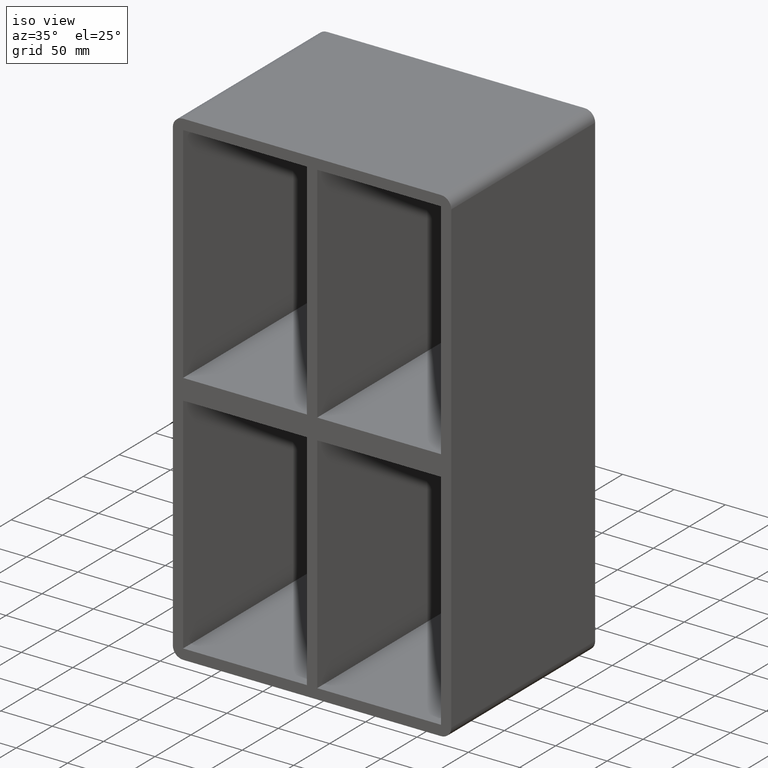
[diagram: clean part render]
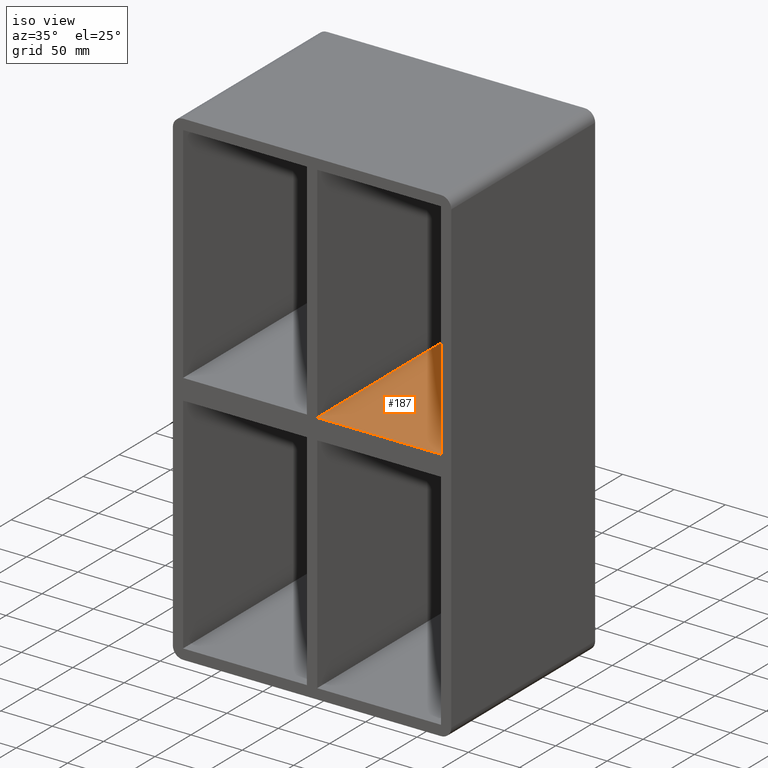
[diagram: same view with one face highlighted and labeled with its STEP entity id]
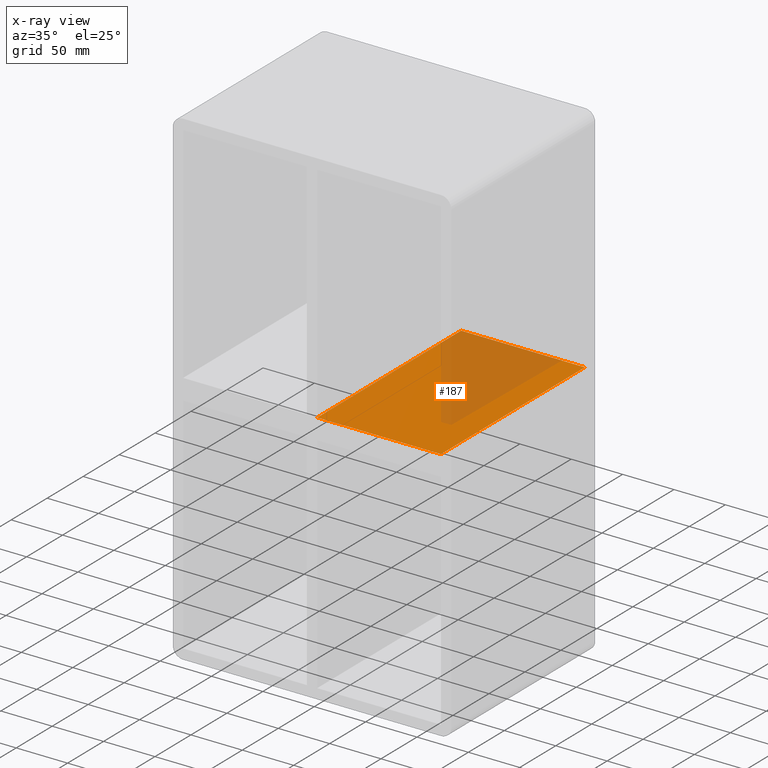
[diagram: x-ray of the same camera — body ghosted, the highlighted face saturated]
A machine part, iso view. The second image highlights one B-rep face of the part: STEP entity #187.
The next image is the same camera in x-ray: the body ghosted, the highlighted face saturated — about 39% of this face is hidden behind the body in this view.
In plain terms, the highlighted planar face has unit normal (0, 0, 1).
Its self-contained STEP definition (entity closure, byte-faithful):
#148=CARTESIAN_POINT('',(-125.49999999999967,-3.0,10.0));
#149=DIRECTION('',(0.0,0.0,1.0));
#150=DIRECTION('',(1.0,0.0,0.0));
#151=AXIS2_PLACEMENT_3D('',#148,#149,#150);
#152=PLANE('',#151);
#153=CARTESIAN_POINT('',(5.0,-3.0,10.0));
#154=VERTEX_POINT('',#153);
#155=CARTESIAN_POINT('',(5.0,197.0,10.0));
#156=VERTEX_POINT('',#155);
#157=CARTESIAN_POINT('',(5.0,-3.0,10.0));
#158=DIRECTION('',(0.0,1.0,0.0));
#159=VECTOR('',#158,200.0);
#160=LINE('',#157,#159);
#161=EDGE_CURVE('',#154,#156,#160,.T.);
#162=ORIENTED_EDGE('',*,*,#161,.F.);
#163=CARTESIAN_POINT('',(125.4999999999999,-3.0,10.0));
#164=VERTEX_POINT('',#163);
#165=CARTESIAN_POINT('',(4.999999999999986,-3.0,10.0));
#166=DIRECTION('',(1.0,0.0,0.0));
#167=VECTOR('',#166,120.49999999999994);
#168=LINE('',#165,#167);
#169=EDGE_CURVE('',#154,#164,#168,.T.);
#170=ORIENTED_EDGE('',*,*,#169,.T.);
#171=CARTESIAN_POINT('',(125.49999999999991,197.0,10.0));
#172=VERTEX_POINT('',#171);
#173=CARTESIAN_POINT('',(125.5,196.99999999999997,10.0));
#174=DIRECTION('',(0.0,-1.0,0.0));
#175=VECTOR('',#174,199.99999999999997);
#176=LINE('',#173,#175);
#177=EDGE_CURVE('',#172,#164,#176,.T.);
#178=ORIENTED_EDGE('',*,*,#177,.F.);
#179=CARTESIAN_POINT('',(4.999999999999986,197.0,10.0));
#180=DIRECTION('',(1.0,0.0,0.0));
#181=VECTOR('',#180,120.49999999999994);
#182=LINE('',#179,#181);
#183=EDGE_CURVE('',#156,#172,#182,.T.);
#184=ORIENTED_EDGE('',*,*,#183,.F.);
#185=EDGE_LOOP('',(#162,#170,#178,#184));
#186=FACE_OUTER_BOUND('',#185,.T.);
#187=ADVANCED_FACE('',(#186),#152,.T.);